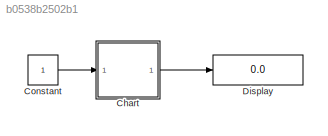
MODEL slx_b0538b2502b1
KIND model
CONFIG AbsTol = auto
CONFIG EnableMultiTasking = off
CONFIG FixedStep = auto
CONFIG MaxStep = auto
CONFIG MinStep = auto
CONFIG RelTol = 1e-3
CONFIG SampleTimeConstraint = Unconstrained
CONFIG SolverName = VariableStepAuto
CONFIG StartTime = 0.0
CONFIG StopTime = 10.0
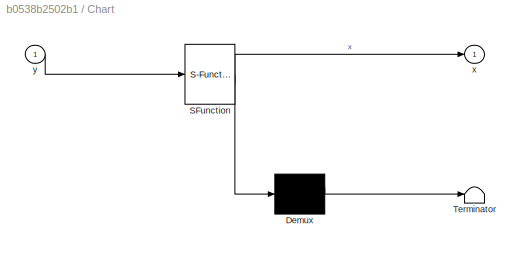
BLOCK [SubSystem] Chart
  ErrorFcn = Stateflow.Translate.translate
  PermitHierarchicalResolution = ExplicitOnly
  SFBlockType = Chart
  TreatAsAtomicUnit = on
BLOCK [Demux] Chart/ Demux 
  Outputs = 1
BLOCK [S-Function] Chart/ SFunction 
  EnableBusSupport = on
  FunctionName = sf_sfun
  PortCounts = [1 2]
  SFcnIsStateOwnerBlock = off
  SFunctionDeploymentMode = off
  Tag = Stateflow S-Function 3
BLOCK [Terminator] Chart/ Terminator 
BLOCK [Outport] Chart/x
BLOCK [Inport] Chart/y
BLOCK [Constant] Constant
BLOCK [Display] Display
  Decimation = 1
LINE Chart:1 -> Display:1
LINE Constant:1 -> Chart:1
CHART Chart states=5 transitions=20
  STATE_LABEL 'F_0\nx=0;'
  STATE_LABEL 'F_1\nx=1;'
  STATE_LABEL 'F_2\nx=2;'
  STATE_LABEL 'F_3\nx=3;'
  STATE_LABEL 'F_4\nx=4;'
CHART  states=0 transitions=0
